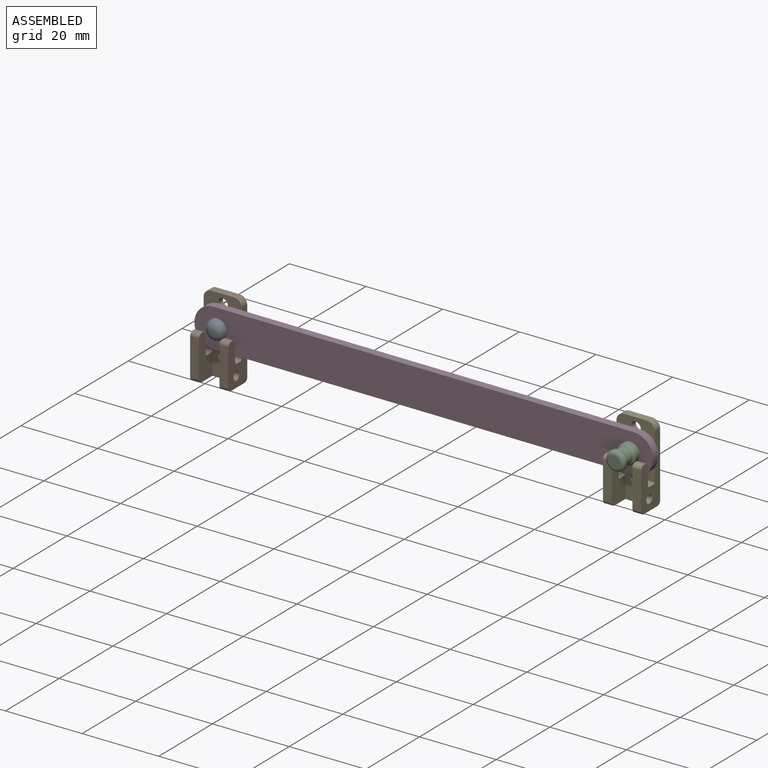
[diagram: assembled view]
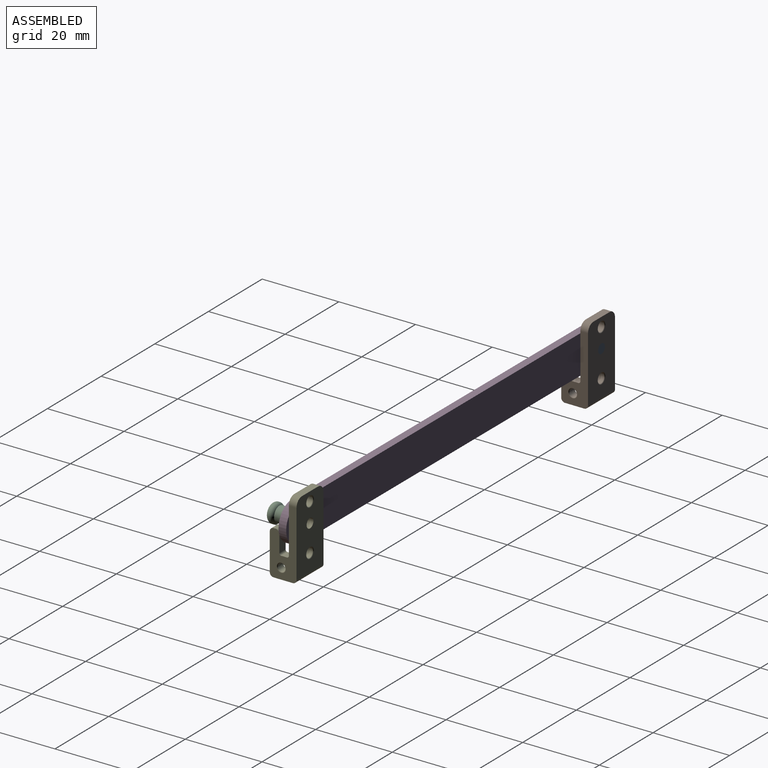
[diagram: assembled view, second angle]
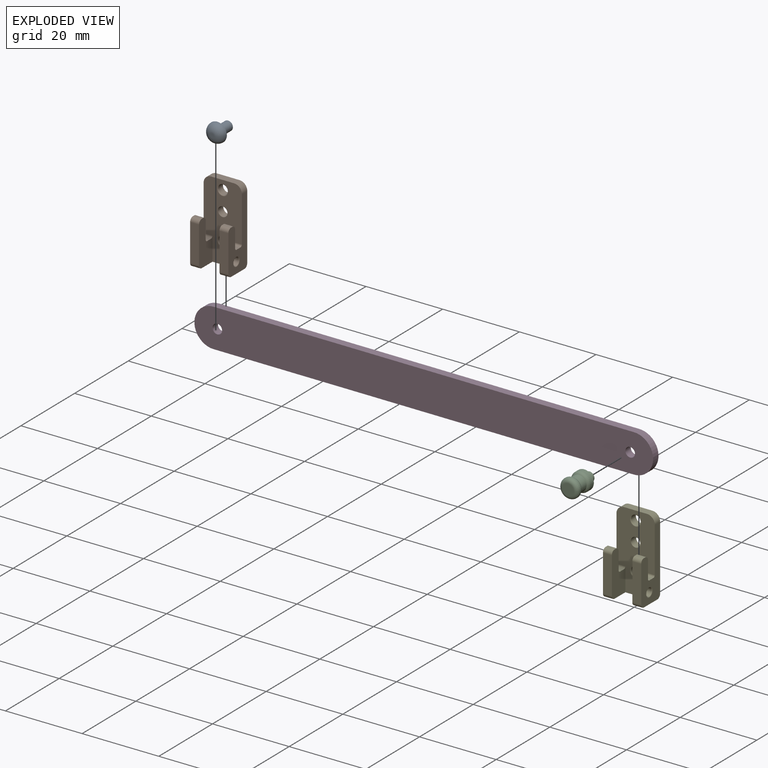
[diagram: exploded view]
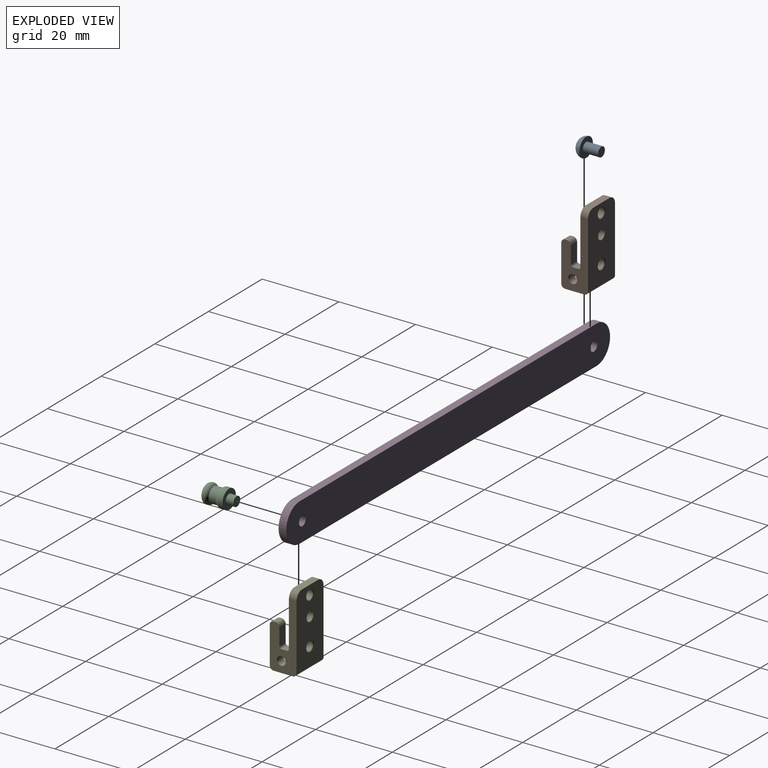
[diagram: exploded view, second angle]
ASSEMBLY  parts=5 mates=4
PART A: 5 faces, bbox 5x6x5 mm
  f0: cylinder r=1.25mm len=4mm, axis (0,1,0), area 31.4mm2, adj f1,f3
  f1: plane 2.5x2.5mm, normal (0,1,0), area 4.9mm2, adj f0
  f2: plane 1x1mm, normal (0,-1,0), area 0.8mm2, adj f4
  f3: plane 5x5mm, normal (0,1,0), area 14.7mm2, adj f0,f4
  f4: torus R=0.5mm, axis (0,-1,0), area 35mm2, adj f2,f3
PART B: 39 faces, bbox 7x10x20 mm
  f0: plane 2.32x0.5mm, normal (0,0,1), area 1.2mm2, adj f2,f13,f19,f22
  f1: plane 18x7mm, normal (0,-1,0), area 78.4mm2, adj f3,f4,f7,f9,f10,f12,f17,f18
  f2: plane 18x7mm, normal (0,1,0), area 73.8mm2, adj f0,f3,f4,f7,f8,f14,f15,f16
  f3: plane 20x10mm, normal (1,0,0), area 151.7mm2, adj f1,f2,f4,f5,f6,f8,f9,f11
  f4: plane 10x5mm, normal (0,0,-1), area 28.6mm2, adj f1,f2,f3,f11,f13,f21,f23,f25
  f5: plane 6x2mm, normal (0,0,1), area 12mm2, adj f3,f7,f8,f9
  f6: cylinder r=1.25mm len=2.5mm, axis (-1,0,0), area 15.7mm2, adj f3,f7
  f7: plane 19x10mm, normal (-1,0,0), area 170.2mm2, adj f1,f2,f5,f6,f8,f9,f25,f35
  f8: cylinder r=2mm len=2mm, axis (1,0,0), area 6.3mm2, adj f2,f3,f5,f7
  f9: cylinder r=2mm len=2mm, axis (-1,0,0), area 6.3mm2, adj f1,f3,f5,f7
  f10: plane 2.32x0.5mm, normal (0,0,1), area 1.2mm2, adj f1,f11,f20,f24
  f11: plane 11.63x5mm, normal (0,1,0), area 42.6mm2, adj f3,f4,f10,f12,f17,f18,f20,f23
  f12: plane 9.63x2.32mm, normal (1,0,0), area 22.3mm2, adj f1,f11,f23,f24
  f13: plane 11.63x5mm, normal (0,-1,0), area 38mm2, adj f0,f3,f4,f14,f15,f16,f19,f21
  f14: plane 9.63x2.32mm, normal (1,0,0), area 22.3mm2, adj f2,f13,f21,f22
  f15: plane 2.32x1.5mm, normal (0,0,1), area 3.5mm2, adj f2,f13,f26,f27
  f16: plane 4.5x2.32mm, normal (-1,0,0), area 10.4mm2, adj f2,f13,f19,f27
  f17: plane 4.5x2.32mm, normal (-1,0,0), area 10.4mm2, adj f1,f11,f20,f28
  f18: plane 2.32x1.5mm, normal (0,0,1), area 3.5mm2, adj f1,f11,f28,f29
  f19: cylinder r=1mm len=2.32mm, axis (0,1,0), area 3.6mm2, adj f0,f2,f13,f16
  f20: cylinder r=1mm len=2.32mm, axis (0,-1,0), area 3.6mm2, adj f1,f10,f11,f17
  f21: cylinder r=1mm len=2.32mm, axis (0,-1,0), area 3.6mm2, adj f2,f4,f13,f14
  f22: cylinder r=1mm len=2.32mm, axis (0,1,0), area 3.6mm2, adj f0,f2,f13,f14
  f23: cylinder r=1mm len=2.32mm, axis (0,-1,0), area 3.6mm2, adj f1,f4,f11,f12
  f24: cylinder r=1mm len=2.32mm, axis (0,1,0), area 3.6mm2, adj f1,f10,f11,f12
  f25: cylinder r=1mm len=10mm, axis (0,1,0), area 15.7mm2, adj f1,f2,f4,f7
  f26: cylinder r=0.5mm len=2.32mm, axis (0,-1,0), area 1.8mm2, adj f2,f3,f13,f15
  f27: cylinder r=0.5mm len=2.32mm, axis (0,1,0), area 1.8mm2, adj f2,f13,f15,f16
  f28: cylinder r=0.5mm len=2.32mm, axis (0,1,0), area 1.8mm2, adj f1,f11,f17,f18
  f29: cylinder r=0.5mm len=2.32mm, axis (0,-1,0), area 1.8mm2, adj f1,f3,f11,f18
  f30: cylinder r=1.25mm len=2.5mm, axis (1,0,0), area 12.6mm2, adj f36,f37
  f31: cylinder r=1.25mm len=2.5mm, axis (1,0,0), area 12.6mm2, adj f35,f38
  f32: cylinder r=1.01mm len=2.02mm, axis (0,-1,0), area 12.2mm2, adj f33,f34
  f33: torus R=1.21mm, axis (0,1,0), area 2.1mm2, adj f2,f32
  f34: torus R=1.21mm, axis (0,-1,0), area 2.1mm2, adj f13,f32
  f35: torus R=1.45mm, axis (1,0,0), area 2.6mm2, adj f7,f31
  f36: torus R=1.45mm, axis (1,0,0), area 2.6mm2, adj f7,f30
  f37: torus R=1.45mm, axis (1,0,0), area 2.6mm2, adj f3,f30
  f38: torus R=1.45mm, axis (1,0,0), area 2.6mm2, adj f3,f31
PART C: 10 faces, bbox 5.4x8x5.4 mm
  f0: cylinder r=1.25mm len=2.5mm, axis (0,1,0), area 15.7mm2, adj f1,f3
  f1: plane 2.5x2.5mm, normal (0,1,0), area 4.9mm2, adj f0
  f2: cylinder r=2.5mm len=5mm, axis (0,1,0), area 17.8mm2, adj f3,f9
  f3: plane 5x5mm, normal (0,1,0), area 14.7mm2, adj f0,f2
  f4: cylinder r=2mm len=4mm, axis (0,1,0), area 25.1mm2, adj f7,f9
  f5: cylinder r=2.5mm len=5mm, axis (0,1,0), area 2.1mm2, adj f7,f8
  f6: plane 3x3mm, normal (0,-1,0), area 7.1mm2, adj f8
  f7: torus R=1.5mm, axis (0,1,0), area 15.3mm2, adj f4,f5
  f8: torus R=1.5mm, axis (0,-1,0), area 21.1mm2, adj f5,f6
  f9: torus R=1.5mm, axis (0,-1,0), area 15.3mm2, adj f2,f4
PART D: 8 faces, bbox 10x2x120 mm
  f0: plane 110x2mm, normal (1,0,0), area 220mm2, adj f2,f3,f4,f5
  f1: plane 110x2mm, normal (-1,0,0), area 220mm2, adj f2,f3,f4,f5
  f2: plane 120x10mm, normal (0,-1,0), area 1168.7mm2, adj f0,f1,f4,f5,f6,f7
  f3: plane 120x10mm, normal (0,1,0), area 1168.7mm2, adj f0,f1,f4,f5,f6,f7
  f4: cylinder r=5mm len=10mm, axis (0,1,0), area 31.4mm2, adj f0,f1,f2,f3
  f5: cylinder r=5mm len=10mm, axis (0,1,0), area 31.4mm2, adj f0,f1,f2,f3
  f6: cylinder r=1.25mm len=2.5mm, axis (0,-1,0), area 15.7mm2, adj f2,f3
  f7: cylinder r=1.25mm len=2.5mm, axis (0,-1,0), area 15.7mm2, adj f2,f3
PART E: same geometry as B
PLACE A rot(axis=(0,0,-1),0.2deg) t=(-26.27,4.05,11.8)mm
PLACE B rot(axis=(0,0,-1),90.2deg) t=(-88.94,4.3,35.11)mm
PLACE C rot(axis=(0,0,-1),0.2deg) t=(80.24,1.64,-1.67)mm
PLACE D rot(axis=(0,-1,0),90deg) t=(-21.96,2.04,74.08)mm
PLACE E rot(axis=(0,0,-1),90.2deg) t=(19.06,3.88,35.11)mm
MATE revolute C.f0 <-> D.f6  axis (0,1,0) through (19.05,1.88,37.61)mm
MATE revolute A.f0 <-> B.f6  axis (0,1,0) through (-88.94,4.3,37.61)mm
MATE revolute B.f6 <-> D.f7  axis (0,-1,0) through (-88.95,2.3,37.61)mm
MATE revolute E.f6 <-> C.f0  axis (0,-1,0) through (19.05,1.88,37.61)mm
